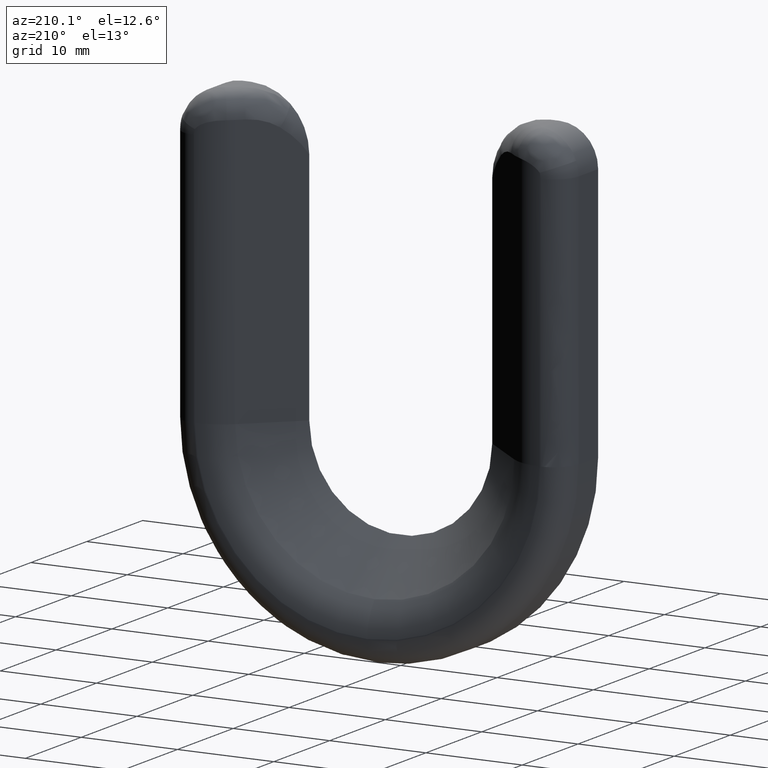
[diagram: clean part render]
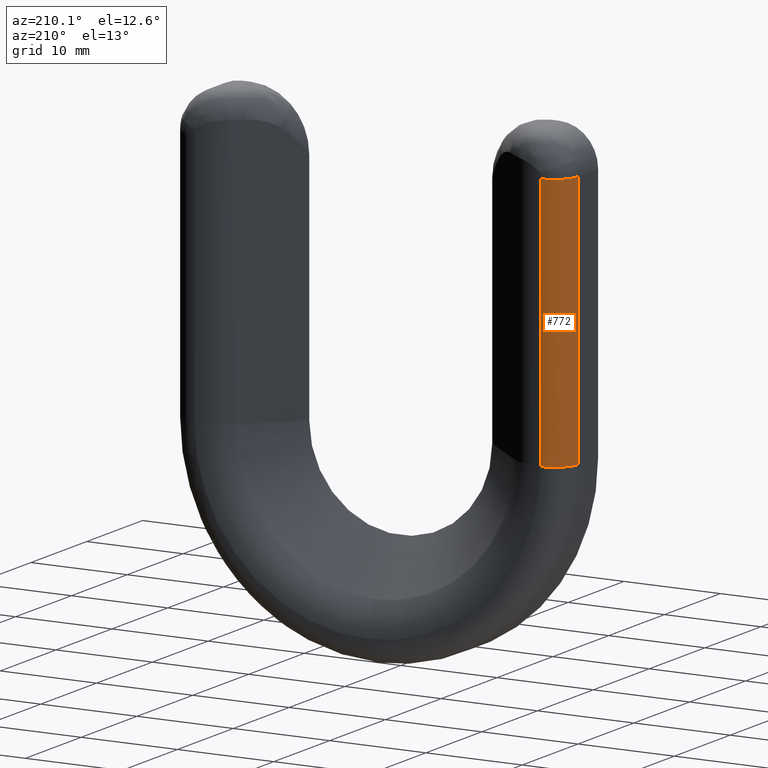
[diagram: same view with one face highlighted and labeled with its STEP entity id]
A machine part, auxiliary view. The second image highlights one B-rep face of the part: STEP entity #772.
In plain terms, the highlighted face is a freeform B-spline surface patch.
Its self-contained STEP definition (entity closure, byte-faithful):
#27 = CARTESIAN_POINT ( 'NONE',  ( -20.49999999999999600, 3.500000000000001300, 9.500000000000010700 ) ) ;
#50 = EDGE_CURVE ( 'NONE', #1232, #755, #550, .T. ) ;
#51 = CARTESIAN_POINT ( 'NONE',  ( -18.00000000000000000, 6.000000000000000900, 9.500000000000008900 ) ) ;
#81 = DIRECTION ( 'NONE',  ( -1.000000000000000000, 0.0000000000000000000, 0.0000000000000000000 ) ) ;
#87 = B_SPLINE_CURVE_WITH_KNOTS ( 'NONE', 3,
 ( #677, #1265, #201, #865 ),
 .UNSPECIFIED., .F., .F.,
 ( 4, 4 ),
 ( 0.0000000000000000000, 0.02649999999999997800 ),
 .UNSPECIFIED. ) ;
#120 = VERTEX_POINT ( 'NONE', #760 ) ;
#136 = ORIENTED_EDGE ( 'NONE', *, *, #615, .F. ) ;
#151 = CARTESIAN_POINT ( 'NONE',  ( -17.99999999999999300, 6.000000000000000900, 35.99999999999999300 ) ) ;
#156 = VERTEX_POINT ( 'NONE', #856 ) ;
#201 = CARTESIAN_POINT ( 'NONE',  ( -17.99999999999999600, 6.000000000000000900, 27.16666666666666100 ) ) ;
#214 = EDGE_CURVE ( 'NONE', #755, #120, #87, .T. ) ;
#230 = CARTESIAN_POINT ( 'NONE',  ( -20.49999999999999300, 3.500000000000001300, 27.16666666666666100 ) ) ;
#255 = CARTESIAN_POINT ( 'NONE',  ( -20.49999999999999300, 6.000000000000000900, 18.33333333333333600 ) ) ;
#262 = EDGE_LOOP ( 'NONE', ( #1217, #619, #414, #136 ) ) ;
#344 = CARTESIAN_POINT ( 'NONE',  ( -20.49999999999999300, 6.000000000000000900, 35.99999999999998600 ) ) ;
#362 = FACE_OUTER_BOUND ( 'NONE', #262, .T. ) ;
#393 = CARTESIAN_POINT ( 'NONE',  ( -18.00000000000000000, 6.000000000000000900, 9.500000000000008900 ) ) ;
#414 = ORIENTED_EDGE ( 'NONE', *, *, #50, .F. ) ;
#445 = CARTESIAN_POINT ( 'NONE',  ( -20.49999999999999300, 3.500000000000001300, 18.33333333333333600 ) ) ;
#543 = CARTESIAN_POINT ( 'NONE',  ( -20.49999999999998900, 3.500000000000001300, 35.99999999999999300 ) ) ;
#544 = EDGE_CURVE ( 'NONE', #156, #120, #924, .T. ) ;
#550 =( BOUNDED_CURVE ( )  B_SPLINE_CURVE ( 2, ( #688, #952, #393 ),
 .UNSPECIFIED., .F., .T. ) 
 B_SPLINE_CURVE_WITH_KNOTS ( ( 3, 3 ),
 ( 0.0000000000000000000, 1.000000000000000000 ),
 .UNSPECIFIED. ) 
 CURVE ( )  GEOMETRIC_REPRESENTATION_ITEM ( )  RATIONAL_B_SPLINE_CURVE ( ( 1.000000000000000000, 0.7071067811865474600, 1.000000000000000000 ) ) 
 REPRESENTATION_ITEM ( '' )  );
#575 = AXIS2_PLACEMENT_3D ( 'NONE', #662, #1051, #81 ) ;
#615 = EDGE_CURVE ( 'NONE', #156, #1232, #993, .T. ) ;
#619 = ORIENTED_EDGE ( 'NONE', *, *, #214, .F. ) ;
#662 = CARTESIAN_POINT ( 'NONE',  ( -17.99999999999999300, 3.500000000000000000, 35.99999999999999300 ) ) ;
#677 = CARTESIAN_POINT ( 'NONE',  ( -18.00000000000000000, 6.000000000000000900, 9.500000000000008900 ) ) ;
#688 = CARTESIAN_POINT ( 'NONE',  ( -20.49999999999999600, 3.500000000000001300, 9.500000000000010700 ) ) ;
#755 = VERTEX_POINT ( 'NONE', #917 ) ;
#760 = CARTESIAN_POINT ( 'NONE',  ( -17.99999999999999300, 6.000000000000000900, 35.99999999999999300 ) ) ;
#772 = ADVANCED_FACE ( 'NONE', ( #362 ), #1090, .T. ) ;
#823 = CARTESIAN_POINT ( 'NONE',  ( -20.50000000000000000, 6.000000000000000900, 9.500000000000008900 ) ) ;
#856 = CARTESIAN_POINT ( 'NONE',  ( -20.49999999999998900, 3.500000000000001300, 35.99999999999999300 ) ) ;
#865 = CARTESIAN_POINT ( 'NONE',  ( -17.99999999999999300, 6.000000000000000900, 35.99999999999999300 ) ) ;
#917 = CARTESIAN_POINT ( 'NONE',  ( -18.00000000000000000, 6.000000000000000900, 9.500000000000008900 ) ) ;
#921 = CARTESIAN_POINT ( 'NONE',  ( -20.49999999999999300, 6.000000000000000900, 27.16666666666666100 ) ) ;
#924 = CIRCLE ( 'NONE', #575, 2.499999999999998700 ) ;
#952 = CARTESIAN_POINT ( 'NONE',  ( -20.49999999999999600, 6.000000000000000900, 9.500000000000010700 ) ) ;
#993 = B_SPLINE_CURVE_WITH_KNOTS ( 'NONE', 3,
 ( #1095, #230, #1163, #1067 ),
 .UNSPECIFIED., .F., .F.,
 ( 4, 4 ),
 ( 0.0000000000000000000, 0.02649999999999997800 ),
 .UNSPECIFIED. ) ;
#1023 = CARTESIAN_POINT ( 'NONE',  ( -17.99999999999999600, 6.000000000000000900, 27.16666666666666100 ) ) ;
#1027 = CARTESIAN_POINT ( 'NONE',  ( -20.49999999999999600, 3.500000000000001300, 9.500000000000010700 ) ) ;
#1051 = DIRECTION ( 'NONE',  ( 0.0000000000000000000, 0.0000000000000000000, -1.000000000000000000 ) ) ;
#1067 = CARTESIAN_POINT ( 'NONE',  ( -20.49999999999999600, 3.500000000000001300, 9.500000000000010700 ) ) ;
#1090 =( BOUNDED_SURFACE ( )  B_SPLINE_SURFACE ( 2, 3, ( 
 ( #51, #1219, #1023, #151 ),
 ( #823, #255, #921, #344 ),
 ( #1027, #445, #1127, #543 ) ),
 .UNSPECIFIED., .F., .F., .T. ) 
 B_SPLINE_SURFACE_WITH_KNOTS ( ( 3, 3 ),
 ( 4, 4 ),
 ( 0.0000000000000000000, 1.000000000000000000 ),
 ( 0.0000000000000000000, 0.02649999999999998200 ),
 .UNSPECIFIED. ) 
 GEOMETRIC_REPRESENTATION_ITEM ( )  RATIONAL_B_SPLINE_SURFACE ( (
 ( 1.000000000000000000, 1.000000000000000000, 1.000000000000000000, 1.000000000000000000),
 ( 0.7071067811865474600, 0.7071067811865474600, 0.7071067811865474600, 0.7071067811865474600),
 ( 1.000000000000000000, 1.000000000000000000, 1.000000000000000000, 1.000000000000000000) ) ) 
 REPRESENTATION_ITEM ( '' )  SURFACE ( )  );
#1095 = CARTESIAN_POINT ( 'NONE',  ( -20.49999999999998900, 3.500000000000001300, 35.99999999999999300 ) ) ;
#1127 = CARTESIAN_POINT ( 'NONE',  ( -20.49999999999999300, 3.500000000000001300, 27.16666666666666100 ) ) ;
#1163 = CARTESIAN_POINT ( 'NONE',  ( -20.49999999999999300, 3.500000000000001300, 18.33333333333333600 ) ) ;
#1217 = ORIENTED_EDGE ( 'NONE', *, *, #544, .T. ) ;
#1219 = CARTESIAN_POINT ( 'NONE',  ( -17.99999999999999600, 6.000000000000000900, 18.33333333333333600 ) ) ;
#1232 = VERTEX_POINT ( 'NONE', #27 ) ;
#1265 = CARTESIAN_POINT ( 'NONE',  ( -17.99999999999999600, 6.000000000000000900, 18.33333333333333600 ) ) ;